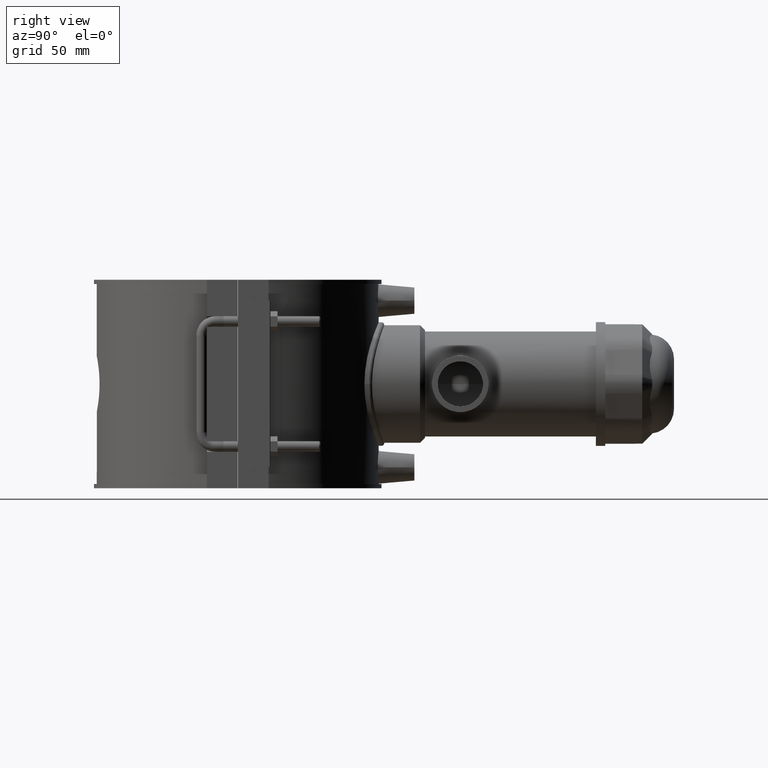
[diagram: clean part render]
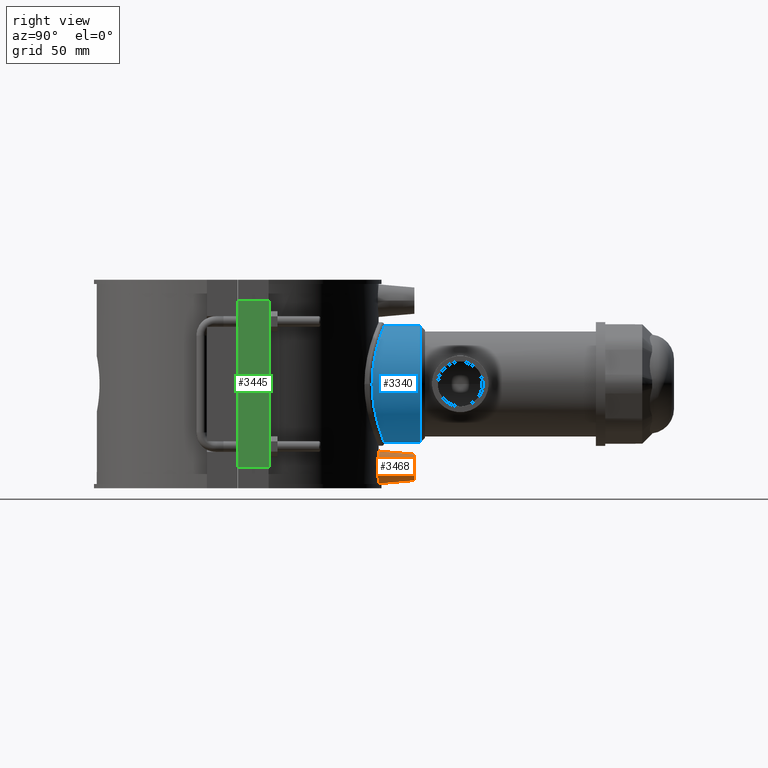
[diagram: same view with three faces highlighted in distinct colors, each labeled with its STEP entity id]
A machine part, right view with three faces highlighted in distinct colors.
Their STEP definitions:

[orange] entity #3468 — the highlighted conical surface has half-angle 5 deg.
#625=CONICAL_SURFACE('',#3736,7.5,5.);
#664=FACE_BOUND('',#1194,.T.);
#742=B_SPLINE_CURVE_WITH_KNOTS('',3,(#6261,#6262,#6263,#6264,#6265,#6266,
#6267,#6268,#6269,#6270,#6271,#6272,#6273,#6274,#6275,#6276,#6277,#6278,
#6279,#6280,#6281,#6282,#6283,#6284,#6285,#6286,#6287,#6288,#6289,#6290,
#6291,#6292,#6293,#6294),.UNSPECIFIED.,.T.,.F.,(4,2,2,2,2,2,2,2,2,2,2,2,
2,2,2,2,4),(0.,0.350537332806521,0.701074665613042,1.05119542431548,1.40131618301793,
1.75143694172037,2.10155770042281,2.45209503322933,2.80263236603585,3.15316969884237,
3.50370703164889,3.85382779035133,4.20394854905378,4.55406930775622,4.90419006645866,
5.25472739926518,5.6052647320717),.UNSPECIFIED.);
#952=FACE_OUTER_BOUND('',#1193,.T.);
#1193=EDGE_LOOP('',(#2824));
#1194=EDGE_LOOP('',(#2825));
#1371=CIRCLE('',#3735,7.5);
#1561=VERTEX_POINT('',#6260);
#1651=VERTEX_POINT('',#6780);
#1953=EDGE_CURVE('',#1561,#1561,#742,.T.);
#2077=EDGE_CURVE('',#1651,#1651,#1371,.T.);
#2824=ORIENTED_EDGE('',*,*,#2077,.T.);
#2825=ORIENTED_EDGE('',*,*,#1953,.F.);
#3468=ADVANCED_FACE('',(#952,#664),#625,.T.);
#3735=AXIS2_PLACEMENT_3D('',#6781,#4422,#4423);
#3736=AXIS2_PLACEMENT_3D('',#6782,#4424,#4425);
#4422=DIRECTION('center_axis',(0.,-1.,0.));
#4423=DIRECTION('ref_axis',(1.,0.,0.));
#4424=DIRECTION('center_axis',(0.,-1.,0.));
#4425=DIRECTION('ref_axis',(1.,0.,0.));
#6260=CARTESIAN_POINT('',(9.31499881409953,79.2544686253925,-47.2));
#6261=CARTESIAN_POINT('Ctrl Pts',(9.31499881409953,79.2544686253925,-47.2));
#6262=CARTESIAN_POINT('Ctrl Pts',(9.31499881409953,79.2544686253925,-46.0315422239783));
#6263=CARTESIAN_POINT('Ctrl Pts',(9.07927705901611,79.2832740529761,-44.7866598084205));
#6264=CARTESIAN_POINT('Ctrl Pts',(8.12401078667296,79.3868456523369,-42.5000799802729));
#6265=CARTESIAN_POINT('Ctrl Pts',(7.40456259486849,79.4600721276288,-41.4582728460423));
#6266=CARTESIAN_POINT('Ctrl Pts',(5.74914170471667,79.5969618701621,-39.8164661855734));
#6267=CARTESIAN_POINT('Ctrl Pts',(4.7028960366599,79.6695522189689,-39.1061335180734));
#6268=CARTESIAN_POINT('Ctrl Pts',(2.41189717008598,79.7717840700412,-38.1642510778672));
#6269=CARTESIAN_POINT('Ctrl Pts',(1.16706919567481,79.8,-37.9327289967763));
#6270=CARTESIAN_POINT('Ctrl Pts',(-1.16706919567481,79.8,-37.9327289967763));
#6271=CARTESIAN_POINT('Ctrl Pts',(-2.41189717008597,79.7717840700413,-38.1642510778672));
#6272=CARTESIAN_POINT('Ctrl Pts',(-4.70289603665989,79.6695522189689,-39.1061335180735));
#6273=CARTESIAN_POINT('Ctrl Pts',(-5.74914170471667,79.5969618701621,-39.8164661855734));
#6274=CARTESIAN_POINT('Ctrl Pts',(-7.40456259486848,79.4600721276288,-41.4582728460423));
#6275=CARTESIAN_POINT('Ctrl Pts',(-8.12401078667296,79.3868456523369,-42.5000799802729));
#6276=CARTESIAN_POINT('Ctrl Pts',(-9.07927705901611,79.2832740529761,-44.7866598084205));
#6277=CARTESIAN_POINT('Ctrl Pts',(-9.31499881409953,79.2544686253925,-46.0315422239783));
#6278=CARTESIAN_POINT('Ctrl Pts',(-9.31499881409953,79.2544686253925,-48.3684577760217));
#6279=CARTESIAN_POINT('Ctrl Pts',(-9.07927705901611,79.2832740529761,-49.6133401915795));
#6280=CARTESIAN_POINT('Ctrl Pts',(-8.12401078667297,79.3868456523369,-51.8999200197271));
#6281=CARTESIAN_POINT('Ctrl Pts',(-7.40456259486849,79.4600721276288,-52.9417271539577));
#6282=CARTESIAN_POINT('Ctrl Pts',(-5.74914170471667,79.5969618701621,-54.5835338144267));
#6283=CARTESIAN_POINT('Ctrl Pts',(-4.7028960366599,79.6695522189689,-55.2938664819266));
#6284=CARTESIAN_POINT('Ctrl Pts',(-2.41189717008598,79.7717840700413,-56.2357489221328));
#6285=CARTESIAN_POINT('Ctrl Pts',(-1.16706919567481,79.8,-56.4672710032237));
#6286=CARTESIAN_POINT('Ctrl Pts',(1.1670691956748,79.8,-56.4672710032237));
#6287=CARTESIAN_POINT('Ctrl Pts',(2.41189717008597,79.7717840700412,-56.2357489221328));
#6288=CARTESIAN_POINT('Ctrl Pts',(4.70289603665989,79.6695522189689,-55.2938664819266));
#6289=CARTESIAN_POINT('Ctrl Pts',(5.74914170471666,79.5969618701621,-54.5835338144267));
#6290=CARTESIAN_POINT('Ctrl Pts',(7.40456259486848,79.4600721276288,-52.9417271539577));
#6291=CARTESIAN_POINT('Ctrl Pts',(8.12401078667296,79.3868456523369,-51.8999200197271));
#6292=CARTESIAN_POINT('Ctrl Pts',(9.07927705901611,79.2832740529761,-49.6133401915795));
#6293=CARTESIAN_POINT('Ctrl Pts',(9.31499881409953,79.2544686253925,-48.3684577760217));
#6294=CARTESIAN_POINT('Ctrl Pts',(9.31499881409953,79.2544686253925,-47.2));
#6780=CARTESIAN_POINT('',(-7.5,100.,-47.2));
#6781=CARTESIAN_POINT('Origin',(0.,100.,-47.2));
#6782=CARTESIAN_POINT('Origin',(0.,100.,-47.2));

[blue] entity #3340 — the highlighted cylindrical surface (bore or boss wall) has radius 33.25 mm, axis along (0, 1, 0).
#632=FACE_BOUND('',#1034,.T.);
#689=B_SPLINE_CURVE_WITH_KNOTS('',3,(#4866,#4867,#4868,#4869,#4870,#4871,
#4872,#4873,#4874,#4875,#4876,#4877,#4878,#4879,#4880,#4881,#4882,#4883,
#4884,#4885,#4886,#4887,#4888,#4889,#4890,#4891,#4892,#4893,#4894,#4895,
#4896,#4897,#4898,#4899,#4900,#4901,#4902,#4903,#4904,#4905,#4906,#4907,
#4908,#4909,#4910,#4911,#4912,#4913,#4914,#4915,#4916,#4917,#4918,#4919,
#4920,#4921,#4922,#4923,#4924,#4925,#4926,#4927,#4928,#4929,#4930,#4931),
 .UNSPECIFIED.,.T.,.F.,(4,2,2,2,2,2,2,2,2,2,2,2,2,2,2,2,2,2,2,2,2,2,2,2,
2,2,2,2,2,2,2,2,4),(0.,0.634369048167235,1.26873809633447,1.9031071445017,
2.53747619266894,3.1711990208265,3.80492184898406,4.43864467714163,5.07236750529919,
5.70609033345675,6.33981316161432,6.97353598977188,7.60725881792944,8.24162786609668,
8.87599691426391,9.51036596243115,10.1447350105984,10.7791040587656,11.4134731069329,
12.0478421551001,12.6822112032673,13.3159340314249,13.9496568595824,14.58337968774,
15.2171025158976,15.8508253440551,16.4845481722127,17.1182710003703,17.7519938285278,
18.3863628766951,19.0207319248623,19.6551009730295,20.2894700211968),
 .UNSPECIFIED.);
#775=CYLINDRICAL_SURFACE('',#3550,33.25);
#824=FACE_OUTER_BOUND('',#1033,.T.);
#1033=EDGE_LOOP('',(#2226));
#1034=EDGE_LOOP('',(#2227));
#1294=CIRCLE('',#3551,33.25);
#1411=VERTEX_POINT('',#4863);
#1412=VERTEX_POINT('',#4865);
#1736=EDGE_CURVE('',#1411,#1411,#1294,.T.);
#1737=EDGE_CURVE('',#1412,#1412,#689,.T.);
#2226=ORIENTED_EDGE('',*,*,#1736,.F.);
#2227=ORIENTED_EDGE('',*,*,#1737,.F.);
#3340=ADVANCED_FACE('',(#824,#632),#775,.T.);
#3550=AXIS2_PLACEMENT_3D('',#4862,#3856,#3857);
#3551=AXIS2_PLACEMENT_3D('',#4864,#3858,#3859);
#3856=DIRECTION('center_axis',(0.,1.,3.06161699786838E-16));
#3857=DIRECTION('ref_axis',(0.,0.,1.));
#3858=DIRECTION('center_axis',(0.,1.,3.06161699786838E-16));
#3859=DIRECTION('ref_axis',(0.,0.,-1.));
#4862=CARTESIAN_POINT('Origin',(0.,52.975,-5.21240293887092E-15));
#4863=CARTESIAN_POINT('',(4.07195060716495E-15,103.2,33.25));
#4864=CARTESIAN_POINT('Origin',(0.,103.2,1.0164568432923E-14));
#4865=CARTESIAN_POINT('',(33.25,76.0401838766846,1.66533453693773E-15));
#4866=CARTESIAN_POINT('Ctrl Pts',(33.25,76.0401838766846,1.66533453693773E-15));
#4867=CARTESIAN_POINT('Ctrl Pts',(33.25,76.0401838766846,2.11456349389078));
#4868=CARTESIAN_POINT('Ctrl Pts',(33.0450536477911,76.1308863708023,4.2924938353297));
#4869=CARTESIAN_POINT('Ctrl Pts',(32.1915951622462,76.4956772019777,8.60826784899953));
#4870=CARTESIAN_POINT('Ctrl Pts',(31.5433633935382,76.7693208262385,10.7462045370982));
#4871=CARTESIAN_POINT('Ctrl Pts',(29.8400097528693,77.4473117306067,14.8336997076393));
#4872=CARTESIAN_POINT('Ctrl Pts',(28.7835375486464,77.8514138120804,16.786964429088));
#4873=CARTESIAN_POINT('Ctrl Pts',(26.3511252291732,78.7080228769168,20.3939306700905));
#4874=CARTESIAN_POINT('Ctrl Pts',(24.9749344312996,79.1596732469402,22.0476665176059));
#4875=CARTESIAN_POINT('Ctrl Pts',(22.0491574944315,80.0239409756844,24.9734434544739));
#4876=CARTESIAN_POINT('Ctrl Pts',(20.3961383150138,80.4679732580769,26.3494436987401));
#4877=CARTESIAN_POINT('Ctrl Pts',(16.7888046701854,81.297190702485,28.7824891096377));
#4878=CARTESIAN_POINT('Ctrl Pts',(14.8344529640052,81.6816637453574,29.8397217063208));
#4879=CARTESIAN_POINT('Ctrl Pts',(10.7447564696788,82.3195322891463,31.543940979672));
#4880=CARTESIAN_POINT('Ctrl Pts',(8.60573613149118,82.5729914485112,32.1922823259322));
#4881=CARTESIAN_POINT('Ctrl Pts',(4.28959607706592,82.9093298526808,33.0454399460092));
#4882=CARTESIAN_POINT('Ctrl Pts',(2.11240942719188,82.992,33.25));
#4883=CARTESIAN_POINT('Ctrl Pts',(-2.11240942719188,82.992,33.25));
#4884=CARTESIAN_POINT('Ctrl Pts',(-4.28959607706592,82.9093298526808,33.0454399460092));
#4885=CARTESIAN_POINT('Ctrl Pts',(-8.60573613149118,82.5729914485112,32.1922823259322));
#4886=CARTESIAN_POINT('Ctrl Pts',(-10.7447564696788,82.3195322891463,31.543940979672));
#4887=CARTESIAN_POINT('Ctrl Pts',(-14.8344529640052,81.6816637453574,29.8397217063208));
#4888=CARTESIAN_POINT('Ctrl Pts',(-16.7888046701854,81.297190702485,28.7824891096377));
#4889=CARTESIAN_POINT('Ctrl Pts',(-20.3961383150138,80.4679732580769,26.3494436987401));
#4890=CARTESIAN_POINT('Ctrl Pts',(-22.0491574944315,80.0239409756844,24.9734434544739));
#4891=CARTESIAN_POINT('Ctrl Pts',(-24.9749344312996,79.1596732469403,22.0476665176059));
#4892=CARTESIAN_POINT('Ctrl Pts',(-26.3511252291732,78.7080228769168,20.3939306700905));
#4893=CARTESIAN_POINT('Ctrl Pts',(-28.7835375486464,77.8514138120804,16.786964429088));
#4894=CARTESIAN_POINT('Ctrl Pts',(-29.8400097528693,77.4473117306068,14.8336997076393));
#4895=CARTESIAN_POINT('Ctrl Pts',(-31.5433633935382,76.7693208262386,10.7462045370982));
#4896=CARTESIAN_POINT('Ctrl Pts',(-32.1915951622462,76.4956772019777,8.60826784899954));
#4897=CARTESIAN_POINT('Ctrl Pts',(-33.0450536477911,76.1308863708023,4.2924938353297));
#4898=CARTESIAN_POINT('Ctrl Pts',(-33.25,76.0401838766846,2.11456349389078));
#4899=CARTESIAN_POINT('Ctrl Pts',(-33.25,76.0401838766846,-2.11456349389078));
#4900=CARTESIAN_POINT('Ctrl Pts',(-33.0450536477911,76.1308863708023,-4.2924938353297));
#4901=CARTESIAN_POINT('Ctrl Pts',(-32.1915951622462,76.4956772019777,-8.60826784899953));
#4902=CARTESIAN_POINT('Ctrl Pts',(-31.5433633935382,76.7693208262385,-10.7462045370982));
#4903=CARTESIAN_POINT('Ctrl Pts',(-29.8400097528693,77.4473117306067,-14.8336997076393));
#4904=CARTESIAN_POINT('Ctrl Pts',(-28.7835375486464,77.8514138120804,-16.786964429088));
#4905=CARTESIAN_POINT('Ctrl Pts',(-26.3511252291732,78.7080228769168,-20.3939306700905));
#4906=CARTESIAN_POINT('Ctrl Pts',(-24.9749344312996,79.1596732469402,-22.0476665176059));
#4907=CARTESIAN_POINT('Ctrl Pts',(-22.0491574944315,80.0239409756844,-24.9734434544739));
#4908=CARTESIAN_POINT('Ctrl Pts',(-20.3961383150138,80.4679732580769,-26.3494436987401));
#4909=CARTESIAN_POINT('Ctrl Pts',(-16.7888046701854,81.297190702485,-28.7824891096376));
#4910=CARTESIAN_POINT('Ctrl Pts',(-14.8344529640052,81.6816637453574,-29.8397217063208));
#4911=CARTESIAN_POINT('Ctrl Pts',(-10.7447564696788,82.3195322891463,-31.543940979672));
#4912=CARTESIAN_POINT('Ctrl Pts',(-8.60573613149118,82.5729914485112,-32.1922823259322));
#4913=CARTESIAN_POINT('Ctrl Pts',(-4.28959607706592,82.9093298526808,-33.0454399460091));
#4914=CARTESIAN_POINT('Ctrl Pts',(-2.11240942719188,82.992,-33.25));
#4915=CARTESIAN_POINT('Ctrl Pts',(2.11240942719187,82.992,-33.25));
#4916=CARTESIAN_POINT('Ctrl Pts',(4.28959607706591,82.9093298526808,-33.0454399460092));
#4917=CARTESIAN_POINT('Ctrl Pts',(8.60573613149118,82.5729914485112,-32.1922823259322));
#4918=CARTESIAN_POINT('Ctrl Pts',(10.7447564696788,82.3195322891463,-31.543940979672));
#4919=CARTESIAN_POINT('Ctrl Pts',(14.8344529640052,81.6816637453574,-29.8397217063208));
#4920=CARTESIAN_POINT('Ctrl Pts',(16.7888046701854,81.297190702485,-28.7824891096377));
#4921=CARTESIAN_POINT('Ctrl Pts',(20.3961383150138,80.4679732580769,-26.3494436987401));
#4922=CARTESIAN_POINT('Ctrl Pts',(22.0491574944315,80.0239409756844,-24.9734434544739));
#4923=CARTESIAN_POINT('Ctrl Pts',(24.9749344312996,79.1596732469402,-22.0476665176059));
#4924=CARTESIAN_POINT('Ctrl Pts',(26.3511252291732,78.7080228769168,-20.3939306700905));
#4925=CARTESIAN_POINT('Ctrl Pts',(28.7835375486464,77.8514138120804,-16.786964429088));
#4926=CARTESIAN_POINT('Ctrl Pts',(29.8400097528693,77.4473117306067,-14.8336997076393));
#4927=CARTESIAN_POINT('Ctrl Pts',(31.5433633935382,76.7693208262386,-10.7462045370982));
#4928=CARTESIAN_POINT('Ctrl Pts',(32.1915951622462,76.4956772019777,-8.60826784899955));
#4929=CARTESIAN_POINT('Ctrl Pts',(33.0450536477911,76.1308863708023,-4.29249383532971));
#4930=CARTESIAN_POINT('Ctrl Pts',(33.25,76.0401838766846,-2.11456349389079));
#4931=CARTESIAN_POINT('Ctrl Pts',(33.25,76.0401838766846,0.));

[green] entity #3445 — the highlighted planar face has unit normal (1, 0, 0).
#195=LINE('',#6587,#482);
#211=LINE('',#6650,#498);
#214=LINE('',#6656,#501);
#215=LINE('',#6657,#502);
#482=VECTOR('',#4308,94.4);
#498=VECTOR('',#4334,17.9500000000001);
#501=VECTOR('',#4339,17.9500000000001);
#502=VECTOR('',#4340,94.4);
#929=FACE_OUTER_BOUND('',#1161,.T.);
#1161=EDGE_LOOP('',(#2753,#2754,#2755,#2756));
#1608=VERTEX_POINT('',#6584);
#1609=VERTEX_POINT('',#6586);
#1627=VERTEX_POINT('',#6649);
#1629=VERTEX_POINT('',#6655);
#2018=EDGE_CURVE('',#1608,#1609,#195,.T.);
#2041=EDGE_CURVE('',#1609,#1627,#211,.T.);
#2044=EDGE_CURVE('',#1629,#1608,#214,.T.);
#2045=EDGE_CURVE('',#1627,#1629,#215,.T.);
#2753=ORIENTED_EDGE('',*,*,#2018,.F.);
#2754=ORIENTED_EDGE('',*,*,#2044,.F.);
#2755=ORIENTED_EDGE('',*,*,#2045,.F.);
#2756=ORIENTED_EDGE('',*,*,#2041,.F.);
#3272=PLANE('',#3704);
#3445=ADVANCED_FACE('',(#929),#3272,.T.);
#3704=AXIS2_PLACEMENT_3D('',#6654,#4337,#4338);
#4308=DIRECTION('',(0.,0.,-1.));
#4334=DIRECTION('',(0.,-1.,0.));
#4337=DIRECTION('center_axis',(1.,0.,0.));
#4338=DIRECTION('ref_axis',(0.,1.,0.));
#4339=DIRECTION('',(0.,1.,0.));
#4340=DIRECTION('',(0.,0.,1.));
#6584=CARTESIAN_POINT('',(91.,18.0000000000001,47.2));
#6586=CARTESIAN_POINT('',(91.,18.0000000000001,-47.2));
#6587=CARTESIAN_POINT('',(91.,18.0000000000001,0.));
#6649=CARTESIAN_POINT('',(91.,0.0500000000000078,-47.2));
#6650=CARTESIAN_POINT('',(91.,0.0500000000000078,-47.2));
#6654=CARTESIAN_POINT('Origin',(91.,0.0500000000000081,0.));
#6655=CARTESIAN_POINT('',(91.,0.0500000000000078,47.2));
#6656=CARTESIAN_POINT('',(91.,0.0500000000000078,47.2));
#6657=CARTESIAN_POINT('',(91.,0.0500000000000081,0.));